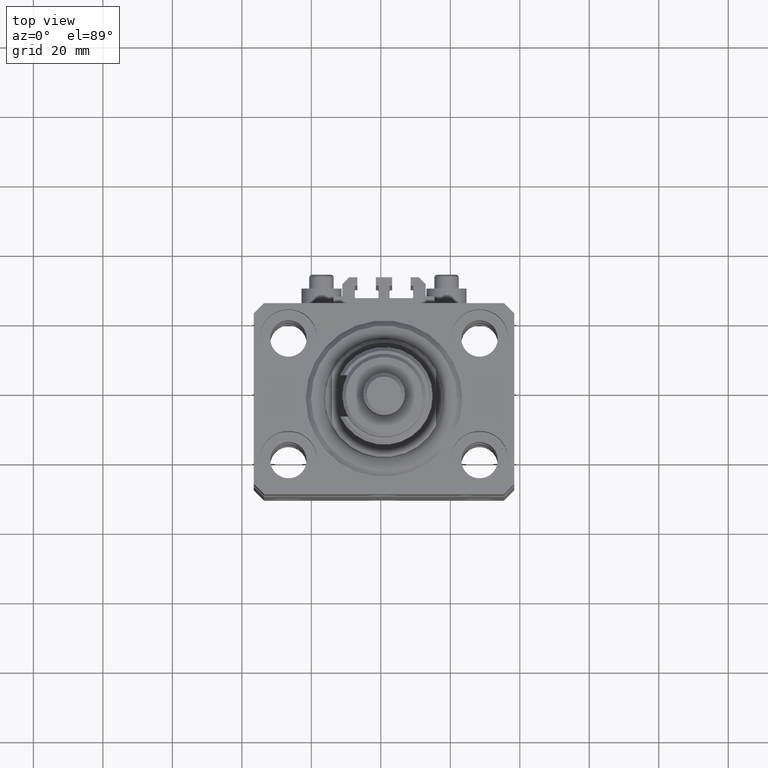
[diagram: clean part render]
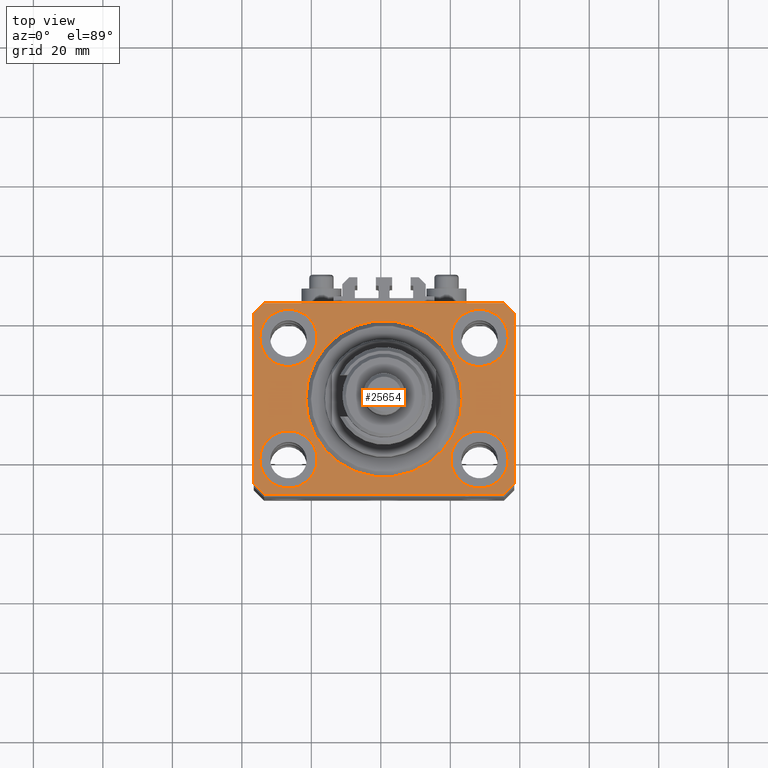
[diagram: same view with one face highlighted and labeled with its STEP entity id]
A machine part, top view. The second image highlights one B-rep face of the part: STEP entity #25654.
In plain terms, the highlighted planar face has unit normal (0, 0, 1).
Its self-contained STEP definition (entity closure, byte-faithful):
#581 = CARTESIAN_POINT ( 'NONE',  ( -37.49999999999999289, -24.50000000000000000, 0.000000000000000000 ) ) ;
#919 = ORIENTED_EDGE ( 'NONE', *, *, #34073, .F. ) ;
#922 = CARTESIAN_POINT ( 'NONE',  ( -19.25000000000000355, 17.50000000000000000, 0.000000000000000000 ) ) ;
#1109 = CARTESIAN_POINT ( 'NONE',  ( 19.25000000000000000, 17.50000000000001066, 0.000000000000000000 ) ) ;
#2182 = CIRCLE ( 'NONE', #37010, 22.50000000000000355 ) ;
#2329 = DIRECTION ( 'NONE',  ( 1.000000000000000000, 0.000000000000000000, 0.000000000000000000 ) ) ;
#2540 = CARTESIAN_POINT ( 'NONE',  ( 0.000000000000000000, 0.000000000000000000, 0.000000000000000000 ) ) ;
#2541 = CARTESIAN_POINT ( 'NONE',  ( -22.50000000000000355, 2.755455298081545172E-15, 0.000000000000000000 ) ) ;
#3145 = CARTESIAN_POINT ( 'NONE',  ( 37.49999999999999289, -24.50000000000000000, 0.000000000000000000 ) ) ;
#3172 = CIRCLE ( 'NONE', #43665, 8.250000000000000000 ) ;
#3219 = AXIS2_PLACEMENT_3D ( 'NONE', #49599, #7237, #38672 ) ;
#3629 = CARTESIAN_POINT ( 'NONE',  ( -34.49999999999998579, -27.49999999999999645, 0.000000000000000000 ) ) ;
#4149 = FACE_BOUND ( 'NONE', #45334, .T. ) ;
#4554 = VERTEX_POINT ( 'NONE', #37620 ) ;
#5195 = CARTESIAN_POINT ( 'NONE',  ( 34.50000000000056843, 27.50000000000000000, 0.000000000000000000 ) ) ;
#5224 = DIRECTION ( 'NONE',  ( 0.000000000000000000, 0.000000000000000000, 1.000000000000000000 ) ) ;
#6151 = EDGE_CURVE ( 'NONE', #48831, #4554, #3172, .T. ) ;
#6591 = DIRECTION ( 'NONE',  ( 1.000000000000000000, 0.000000000000000000, 0.000000000000000000 ) ) ;
#7027 = VERTEX_POINT ( 'NONE', #7109 ) ;
#7064 = AXIS2_PLACEMENT_3D ( 'NONE', #26214, #26722, #42206 ) ;
#7109 = CARTESIAN_POINT ( 'NONE',  ( -35.75000000000000711, -17.50000000000000000, 0.000000000000000000 ) ) ;
#7237 = DIRECTION ( 'NONE',  ( 0.000000000000000000, 0.000000000000000000, 1.000000000000000000 ) ) ;
#7335 = CARTESIAN_POINT ( 'NONE',  ( 22.50000000000000355, 0.000000000000000000, 0.000000000000000000 ) ) ;
#7972 = DIRECTION ( 'NONE',  ( 0.000000000000000000, 0.000000000000000000, 1.000000000000000000 ) ) ;
#8122 = ORIENTED_EDGE ( 'NONE', *, *, #20110, .T. ) ;
#8224 = CARTESIAN_POINT ( 'NONE',  ( 0.000000000000000000, 0.000000000000000000, 0.000000000000000000 ) ) ;
#8763 = CARTESIAN_POINT ( 'NONE',  ( -37.49999999999999289, 24.50000000000000000, 0.000000000000000000 ) ) ;
#9159 = ORIENTED_EDGE ( 'NONE', *, *, #32266, .F. ) ;
#9278 = DIRECTION ( 'NONE',  ( 0.000000000000000000, -1.000000000000000000, 0.000000000000000000 ) ) ;
#9717 = DIRECTION ( 'NONE',  ( 0.000000000000000000, 0.000000000000000000, 1.000000000000000000 ) ) ;
#9931 = ORIENTED_EDGE ( 'NONE', *, *, #28299, .T. ) ;
#9996 = EDGE_LOOP ( 'NONE', ( #21834, #35879 ) ) ;
#10332 = EDGE_CURVE ( 'NONE', #25313, #49097, #25189, .T. ) ;
#10390 = ORIENTED_EDGE ( 'NONE', *, *, #41409, .T. ) ;
#10593 = DIRECTION ( 'NONE',  ( 1.076236605503979380E-14, 1.000000000000000000, 0.000000000000000000 ) ) ;
#10623 = CARTESIAN_POINT ( 'NONE',  ( 35.75000000000000711, -17.50000000000000000, 0.000000000000000000 ) ) ;
#10648 = ORIENTED_EDGE ( 'NONE', *, *, #27720, .T. ) ;
#10686 = AXIS2_PLACEMENT_3D ( 'NONE', #37232, #18193, #25804 ) ;
#10822 = DIRECTION ( 'NONE',  ( 0.000000000000000000, 0.000000000000000000, 1.000000000000000000 ) ) ;
#10965 = LINE ( 'NONE', #33526, #24633 ) ;
#11447 = ORIENTED_EDGE ( 'NONE', *, *, #10332, .F. ) ;
#11526 = CARTESIAN_POINT ( 'NONE',  ( -27.50000000000000355, 17.50000000000000000, 0.000000000000000000 ) ) ;
#11608 = CIRCLE ( 'NONE', #18056, 8.249999999999992895 ) ;
#11786 = DIRECTION ( 'NONE',  ( 0.7071067811865483499, -0.7071067811865466846, 0.000000000000000000 ) ) ;
#11798 = FACE_BOUND ( 'NONE', #30651, .T. ) ;
#11851 = DIRECTION ( 'NONE',  ( 0.000000000000000000, 0.000000000000000000, 1.000000000000000000 ) ) ;
#12482 = CARTESIAN_POINT ( 'NONE',  ( 35.74999999999999289, 17.50000000000001066, 0.000000000000000000 ) ) ;
#12598 = CARTESIAN_POINT ( 'NONE',  ( -34.49999999999999289, 27.50000000000000000, 0.000000000000000000 ) ) ;
#13302 = VECTOR ( 'NONE', #30525, 1000.000000000000000 ) ;
#13881 = DIRECTION ( 'NONE',  ( 1.000000000000000000, 0.000000000000000000, 0.000000000000000000 ) ) ;
#13927 = EDGE_LOOP ( 'NONE', ( #10390, #39053, #9931, #27134, #8122, #20273, #21959, #10648 ) ) ;
#14011 = CARTESIAN_POINT ( 'NONE',  ( 34.50000000000056843, 27.50000000000000000, 0.000000000000000000 ) ) ;
#14444 = VERTEX_POINT ( 'NONE', #16277 ) ;
#15021 = EDGE_CURVE ( 'NONE', #7027, #49328, #21208, .T. ) ;
#15503 = CIRCLE ( 'NONE', #38198, 22.50000000000000355 ) ;
#15515 = CARTESIAN_POINT ( 'NONE',  ( 34.49999999999999289, -27.49999999999999645, 0.000000000000000000 ) ) ;
#16277 = CARTESIAN_POINT ( 'NONE',  ( -34.49999999999998579, -27.49999999999999645, 0.000000000000000000 ) ) ;
#16571 = LINE ( 'NONE', #581, #40198 ) ;
#16996 = VERTEX_POINT ( 'NONE', #48131 ) ;
#17389 = CARTESIAN_POINT ( 'NONE',  ( 37.50000000000051870, 24.49999999999995381, 0.000000000000000000 ) ) ;
#18056 = AXIS2_PLACEMENT_3D ( 'NONE', #19692, #27061, #23491 ) ;
#18193 = DIRECTION ( 'NONE',  ( 0.000000000000000000, 0.000000000000000000, 1.000000000000000000 ) ) ;
#18725 = EDGE_CURVE ( 'NONE', #39987, #35455, #11608, .T. ) ;
#19692 = CARTESIAN_POINT ( 'NONE',  ( 27.49999999999999645, 17.50000000000001066, 0.000000000000000000 ) ) ;
#19911 = VERTEX_POINT ( 'NONE', #15515 ) ;
#20110 = EDGE_CURVE ( 'NONE', #14444, #19911, #34565, .T. ) ;
#20273 = ORIENTED_EDGE ( 'NONE', *, *, #43486, .T. ) ;
#20733 = LINE ( 'NONE', #36727, #36572 ) ;
#21039 = EDGE_CURVE ( 'NONE', #34933, #16996, #10965, .T. ) ;
#21208 = CIRCLE ( 'NONE', #10686, 8.250000000000000000 ) ;
#21607 = CARTESIAN_POINT ( 'NONE',  ( -37.49999999999999289, -24.50000000000000000, 0.000000000000000000 ) ) ;
#21834 = ORIENTED_EDGE ( 'NONE', *, *, #39921, .F. ) ;
#21917 = ORIENTED_EDGE ( 'NONE', *, *, #15021, .F. ) ;
#21959 = ORIENTED_EDGE ( 'NONE', *, *, #46496, .T. ) ;
#23032 = AXIS2_PLACEMENT_3D ( 'NONE', #8224, #7972, #39163 ) ;
#23123 = EDGE_CURVE ( 'NONE', #4554, #48831, #28771, .T. ) ;
#23491 = DIRECTION ( 'NONE',  ( 1.000000000000000000, 0.000000000000000000, 0.000000000000000000 ) ) ;
#23577 = EDGE_LOOP ( 'NONE', ( #44250, #48436 ) ) ;
#23901 = AXIS2_PLACEMENT_3D ( 'NONE', #26264, #10822, #13881 ) ;
#24633 = VECTOR ( 'NONE', #26410, 1000.000000000000000 ) ;
#24867 = DIRECTION ( 'NONE',  ( 0.000000000000000000, 0.000000000000000000, 1.000000000000000000 ) ) ;
#25018 = ORIENTED_EDGE ( 'NONE', *, *, #23123, .F. ) ;
#25189 = CIRCLE ( 'NONE', #36524, 8.250000000000000000 ) ;
#25258 = DIRECTION ( 'NONE',  ( 1.000000000000000000, 0.000000000000000000, 0.000000000000000000 ) ) ;
#25313 = VERTEX_POINT ( 'NONE', #29187 ) ;
#25654 = ADVANCED_FACE ( 'NONE', ( #26485, #4149, #46525, #11798, #42974, #27241 ), #42729, .T. ) ;
#25804 = DIRECTION ( 'NONE',  ( 1.000000000000000000, 0.000000000000000000, 0.000000000000000000 ) ) ;
#25978 = VECTOR ( 'NONE', #10593, 1000.000000000000000 ) ;
#26214 = CARTESIAN_POINT ( 'NONE',  ( -27.50000000000000355, -17.50000000000000000, 0.000000000000000000 ) ) ;
#26264 = CARTESIAN_POINT ( 'NONE',  ( 27.50000000000000355, -17.50000000000000000, 0.000000000000000000 ) ) ;
#26410 = DIRECTION ( 'NONE',  ( -0.7071067811865471286, -0.7071067811865479058, 0.000000000000000000 ) ) ;
#26485 = FACE_BOUND ( 'NONE', #36200, .T. ) ;
#26722 = DIRECTION ( 'NONE',  ( 0.000000000000000000, 0.000000000000000000, 1.000000000000000000 ) ) ;
#26965 = DIRECTION ( 'NONE',  ( 1.000000000000000000, 0.000000000000000000, 0.000000000000000000 ) ) ;
#27061 = DIRECTION ( 'NONE',  ( 0.000000000000000000, 0.000000000000000000, 1.000000000000000000 ) ) ;
#27134 = ORIENTED_EDGE ( 'NONE', *, *, #33340, .T. ) ;
#27241 = FACE_OUTER_BOUND ( 'NONE', #13927, .T. ) ;
#27290 = DIRECTION ( 'NONE',  ( 1.000000000000000000, 0.000000000000000000, 0.000000000000000000 ) ) ;
#27720 = EDGE_CURVE ( 'NONE', #34211, #45742, #28823, .T. ) ;
#28023 = LINE ( 'NONE', #8763, #42602 ) ;
#28299 = EDGE_CURVE ( 'NONE', #16996, #42103, #28023, .T. ) ;
#28771 = CIRCLE ( 'NONE', #23901, 8.250000000000000000 ) ;
#28823 = LINE ( 'NONE', #44789, #36869 ) ;
#29187 = CARTESIAN_POINT ( 'NONE',  ( -35.75000000000000711, 17.50000000000000000, 0.000000000000000000 ) ) ;
#30525 = DIRECTION ( 'NONE',  ( 1.000000000000000000, 0.000000000000000000, 0.000000000000000000 ) ) ;
#30651 = EDGE_LOOP ( 'NONE', ( #919, #11447 ) ) ;
#30787 = VECTOR ( 'NONE', #48256, 1000.000000000000000 ) ;
#31368 = EDGE_CURVE ( 'NONE', #47577, #35568, #2182, .T. ) ;
#32266 = EDGE_CURVE ( 'NONE', #49328, #7027, #36933, .T. ) ;
#32371 = CIRCLE ( 'NONE', #3219, 8.249999999999992895 ) ;
#32775 = LINE ( 'NONE', #14011, #30787 ) ;
#33129 = DIRECTION ( 'NONE',  ( -0.7071067811865356934, 0.7071067811865594521, 0.000000000000000000 ) ) ;
#33340 = EDGE_CURVE ( 'NONE', #42103, #14444, #16571, .T. ) ;
#33526 = CARTESIAN_POINT ( 'NONE',  ( -34.49999999999999289, 27.50000000000000000, 0.000000000000000000 ) ) ;
#34073 = EDGE_CURVE ( 'NONE', #49097, #25313, #36160, .T. ) ;
#34211 = VERTEX_POINT ( 'NONE', #17389 ) ;
#34311 = VERTEX_POINT ( 'NONE', #3145 ) ;
#34565 = LINE ( 'NONE', #3629, #13302 ) ;
#34933 = VERTEX_POINT ( 'NONE', #12598 ) ;
#35455 = VERTEX_POINT ( 'NONE', #12482 ) ;
#35565 = DIRECTION ( 'NONE',  ( 0.000000000000000000, 0.000000000000000000, 1.000000000000000000 ) ) ;
#35568 = VERTEX_POINT ( 'NONE', #2541 ) ;
#35879 = ORIENTED_EDGE ( 'NONE', *, *, #18725, .F. ) ;
#36160 = CIRCLE ( 'NONE', #37792, 8.250000000000000000 ) ;
#36200 = EDGE_LOOP ( 'NONE', ( #9159, #21917 ) ) ;
#36524 = AXIS2_PLACEMENT_3D ( 'NONE', #11526, #35565, #26965 ) ;
#36572 = VECTOR ( 'NONE', #41709, 1000.000000000000114 ) ;
#36727 = CARTESIAN_POINT ( 'NONE',  ( 34.49999999999999289, -27.49999999999999645, 0.000000000000000000 ) ) ;
#36869 = VECTOR ( 'NONE', #33129, 1000.000000000000114 ) ;
#36933 = CIRCLE ( 'NONE', #7064, 8.250000000000000000 ) ;
#37010 = AXIS2_PLACEMENT_3D ( 'NONE', #37068, #9717, #2329 ) ;
#37068 = CARTESIAN_POINT ( 'NONE',  ( 0.000000000000000000, 0.000000000000000000, 0.000000000000000000 ) ) ;
#37232 = CARTESIAN_POINT ( 'NONE',  ( -27.50000000000000355, -17.50000000000000000, 0.000000000000000000 ) ) ;
#37620 = CARTESIAN_POINT ( 'NONE',  ( 19.25000000000000000, -17.50000000000000000, 0.000000000000000000 ) ) ;
#37792 = AXIS2_PLACEMENT_3D ( 'NONE', #46578, #11851, #27290 ) ;
#37963 = ORIENTED_EDGE ( 'NONE', *, *, #6151, .F. ) ;
#38198 = AXIS2_PLACEMENT_3D ( 'NONE', #2540, #24867, #6591 ) ;
#38672 = DIRECTION ( 'NONE',  ( 1.000000000000000000, 0.000000000000000000, 0.000000000000000000 ) ) ;
#39053 = ORIENTED_EDGE ( 'NONE', *, *, #21039, .T. ) ;
#39163 = DIRECTION ( 'NONE',  ( 1.000000000000000000, 0.000000000000000000, -0.000000000000000000 ) ) ;
#39921 = EDGE_CURVE ( 'NONE', #35455, #39987, #32371, .T. ) ;
#39987 = VERTEX_POINT ( 'NONE', #1109 ) ;
#40198 = VECTOR ( 'NONE', #11786, 1000.000000000000000 ) ;
#41409 = EDGE_CURVE ( 'NONE', #45742, #34933, #32775, .T. ) ;
#41709 = DIRECTION ( 'NONE',  ( 0.7071067811865474617, 0.7071067811865474617, 0.000000000000000000 ) ) ;
#41736 = CARTESIAN_POINT ( 'NONE',  ( -19.25000000000000355, -17.50000000000000000, 0.000000000000000000 ) ) ;
#42103 = VERTEX_POINT ( 'NONE', #21607 ) ;
#42206 = DIRECTION ( 'NONE',  ( 1.000000000000000000, 0.000000000000000000, 0.000000000000000000 ) ) ;
#42602 = VECTOR ( 'NONE', #9278, 1000.000000000000000 ) ;
#42729 = PLANE ( 'NONE',  #23032 ) ;
#42974 = FACE_BOUND ( 'NONE', #23577, .T. ) ;
#43486 = EDGE_CURVE ( 'NONE', #19911, #34311, #20733, .T. ) ;
#43665 = AXIS2_PLACEMENT_3D ( 'NONE', #44285, #5224, #25258 ) ;
#44039 = EDGE_CURVE ( 'NONE', #35568, #47577, #15503, .T. ) ;
#44250 = ORIENTED_EDGE ( 'NONE', *, *, #31368, .F. ) ;
#44285 = CARTESIAN_POINT ( 'NONE',  ( 27.50000000000000355, -17.50000000000000000, 0.000000000000000000 ) ) ;
#44789 = CARTESIAN_POINT ( 'NONE',  ( 37.50000000000051870, 24.49999999999995381, 0.000000000000000000 ) ) ;
#45309 = CARTESIAN_POINT ( 'NONE',  ( 37.49999999999999289, -24.50000000000000000, 0.000000000000000000 ) ) ;
#45334 = EDGE_LOOP ( 'NONE', ( #37963, #25018 ) ) ;
#45742 = VERTEX_POINT ( 'NONE', #5195 ) ;
#46328 = LINE ( 'NONE', #45309, #25978 ) ;
#46496 = EDGE_CURVE ( 'NONE', #34311, #34211, #46328, .T. ) ;
#46525 = FACE_BOUND ( 'NONE', #9996, .T. ) ;
#46578 = CARTESIAN_POINT ( 'NONE',  ( -27.50000000000000355, 17.50000000000000000, 0.000000000000000000 ) ) ;
#47577 = VERTEX_POINT ( 'NONE', #7335 ) ;
#48131 = CARTESIAN_POINT ( 'NONE',  ( -37.49999999999999289, 24.50000000000000000, 0.000000000000000000 ) ) ;
#48256 = DIRECTION ( 'NONE',  ( -1.000000000000000000, 0.000000000000000000, 0.000000000000000000 ) ) ;
#48436 = ORIENTED_EDGE ( 'NONE', *, *, #44039, .F. ) ;
#48831 = VERTEX_POINT ( 'NONE', #10623 ) ;
#49097 = VERTEX_POINT ( 'NONE', #922 ) ;
#49328 = VERTEX_POINT ( 'NONE', #41736 ) ;
#49599 = CARTESIAN_POINT ( 'NONE',  ( 27.49999999999999645, 17.50000000000001066, 0.000000000000000000 ) ) ;